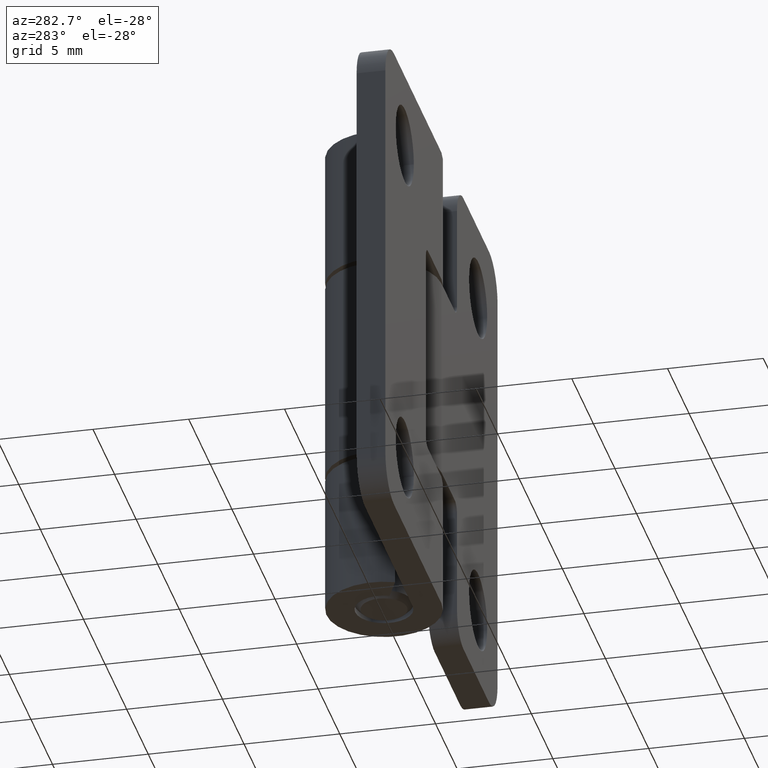
[diagram: clean part render]
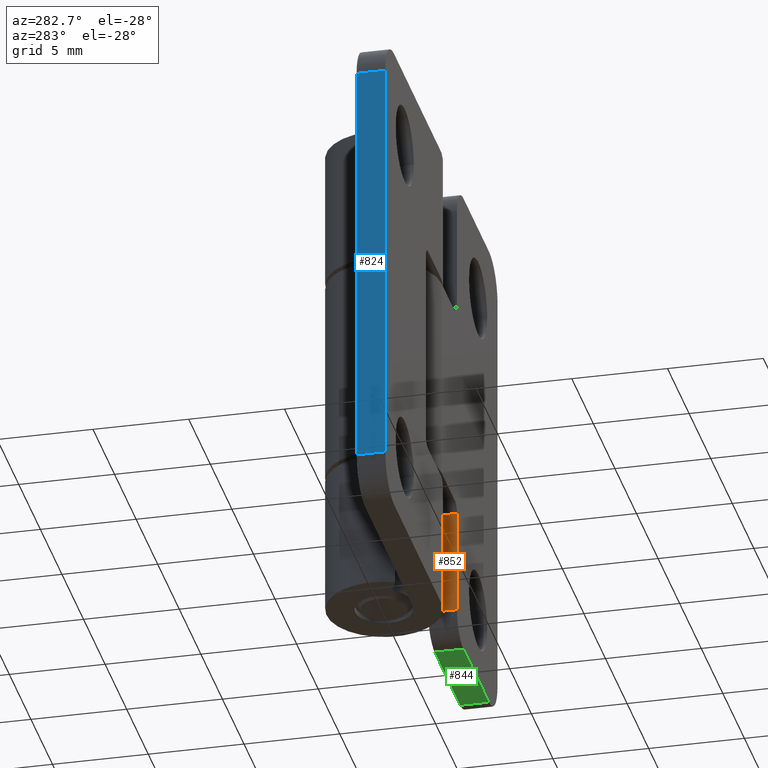
[diagram: same view with three faces highlighted in distinct colors, each labeled with its STEP entity id]
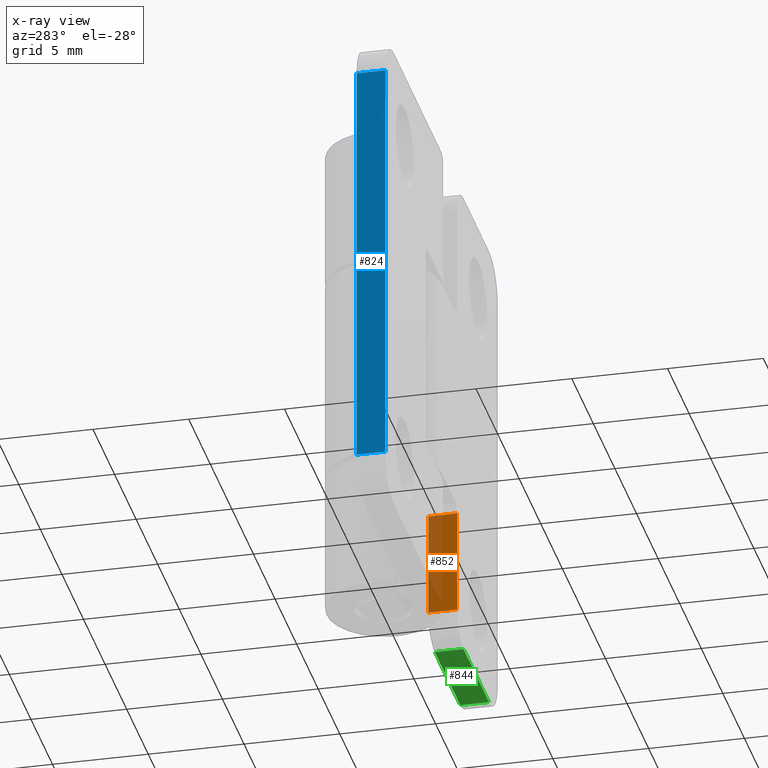
[diagram: x-ray of the same camera — body ghosted, the three highlighted faces saturated]
A machine part, auxiliary view with three faces highlighted in distinct colors.
The next image is the same camera in x-ray (body ghosted, the three faces saturated) — at least one of them is partly hidden behind the body in this view.
Their STEP definitions:

[orange] entity #852 — the highlighted planar face has unit normal (1, 0, 0).
#82=PLANE('',#946);
#122=FACE_OUTER_BOUND('',#181,.T.);
#181=EDGE_LOOP('',(#745,#746,#747,#748));
#245=LINE('',#1391,#309);
#250=LINE('',#1410,#314);
#255=LINE('',#1424,#319);
#264=LINE('',#1454,#328);
#309=VECTOR('',#1122,5.55);
#314=VECTOR('',#1139,1.5);
#319=VECTOR('',#1154,1.5);
#328=VECTOR('',#1187,5.55);
#430=VERTEX_POINT('',#1388);
#431=VERTEX_POINT('',#1390);
#439=VERTEX_POINT('',#1408);
#442=VERTEX_POINT('',#1420);
#528=EDGE_CURVE('',#430,#431,#245,.T.);
#538=EDGE_CURVE('',#439,#430,#250,.T.);
#545=EDGE_CURVE('',#431,#442,#255,.T.);
#560=EDGE_CURVE('',#442,#439,#264,.T.);
#745=ORIENTED_EDGE('',*,*,#538,.F.);
#746=ORIENTED_EDGE('',*,*,#560,.F.);
#747=ORIENTED_EDGE('',*,*,#545,.F.);
#748=ORIENTED_EDGE('',*,*,#528,.F.);
#852=ADVANCED_FACE('',(#122),#82,.F.);
#946=AXIS2_PLACEMENT_3D('',#1453,#1185,#1186);
#1122=DIRECTION('',(-4.69709741187566E-16,-1.20342131436267E-31,1.));
#1139=DIRECTION('',(-1.85037170770859E-16,1.,0.));
#1154=DIRECTION('',(1.85037170770859E-16,-1.,0.));
#1185=DIRECTION('center_axis',(1.,1.85037170770859E-16,4.69709741187566E-16));
#1186=DIRECTION('ref_axis',(-4.44089209850063E-16,0.,1.));
#1187=DIRECTION('',(4.69709741187566E-16,8.02280876241783E-32,-1.));
#1388=CARTESIAN_POINT('',(3.60000000000001,-1.5,-11.5));
#1390=CARTESIAN_POINT('',(3.6,-1.5,-5.95));
#1391=CARTESIAN_POINT('',(3.6,-1.5,-6.5));
#1408=CARTESIAN_POINT('',(3.60000000000001,-3.,-11.5));
#1410=CARTESIAN_POINT('',(3.60000000000001,-1.5,-11.5));
#1420=CARTESIAN_POINT('',(3.6,-3.,-5.95));
#1424=CARTESIAN_POINT('',(3.6,-3.,-5.95));
#1453=CARTESIAN_POINT('Origin',(3.60000000000001,-3.,-13.));
#1454=CARTESIAN_POINT('',(3.6,-3.,-6.5));

[blue] entity #824 — the highlighted planar face has unit normal (-1, -0, -0).
#69=PLANE('',#890);
#94=FACE_OUTER_BOUND('',#145,.T.);
#145=EDGE_LOOP('',(#611,#612,#613,#614));
#216=LINE('',#1293,#280);
#217=LINE('',#1296,#281);
#223=LINE('',#1312,#287);
#224=LINE('',#1313,#288);
#280=VECTOR('',#1017,1.5);
#281=VECTOR('',#1020,22.);
#287=VECTOR('',#1034,22.);
#288=VECTOR('',#1035,1.5);
#397=VERTEX_POINT('',#1286);
#400=VERTEX_POINT('',#1291);
#401=VERTEX_POINT('',#1295);
#407=VERTEX_POINT('',#1311);
#482=EDGE_CURVE('',#400,#397,#216,.T.);
#483=EDGE_CURVE('',#401,#397,#217,.T.);
#492=EDGE_CURVE('',#407,#400,#223,.T.);
#493=EDGE_CURVE('',#401,#407,#224,.T.);
#611=ORIENTED_EDGE('',*,*,#482,.F.);
#612=ORIENTED_EDGE('',*,*,#492,.F.);
#613=ORIENTED_EDGE('',*,*,#493,.F.);
#614=ORIENTED_EDGE('',*,*,#483,.T.);
#824=ADVANCED_FACE('',(#94),#69,.T.);
#890=AXIS2_PLACEMENT_3D('',#1310,#1032,#1033);
#1017=DIRECTION('',(0.,1.,0.));
#1020=DIRECTION('',(0.,0.,1.));
#1032=DIRECTION('center_axis',(1.,0.,0.));
#1033=DIRECTION('ref_axis',(0.,1.,0.));
#1034=DIRECTION('',(0.,0.,1.));
#1035=DIRECTION('',(0.,-1.,0.));
#1286=CARTESIAN_POINT('',(13.,-1.5,11.));
#1291=CARTESIAN_POINT('',(13.,-3.,11.));
#1293=CARTESIAN_POINT('',(13.,-1.5,11.));
#1295=CARTESIAN_POINT('',(13.,-1.5,-11.));
#1296=CARTESIAN_POINT('',(13.,-1.5,0.));
#1310=CARTESIAN_POINT('Origin',(13.,-3.,0.));
#1311=CARTESIAN_POINT('',(13.,-3.,-11.));
#1312=CARTESIAN_POINT('',(13.,-3.,0.));
#1313=CARTESIAN_POINT('',(13.,-1.5,-11.));

[green] entity #844 — the highlighted planar face has unit normal (-0, -0, 1).
#78=PLANE('',#930);
#114=FACE_OUTER_BOUND('',#173,.T.);
#173=EDGE_LOOP('',(#709,#710,#711,#712));
#244=LINE('',#1387,#308);
#249=LINE('',#1407,#313);
#251=LINE('',#1413,#315);
#252=LINE('',#1414,#316);
#308=VECTOR('',#1119,5.89999999999999);
#313=VECTOR('',#1136,1.5);
#315=VECTOR('',#1142,1.5);
#316=VECTOR('',#1143,5.89999999999999);
#428=VERTEX_POINT('',#1384);
#429=VERTEX_POINT('',#1386);
#438=VERTEX_POINT('',#1406);
#440=VERTEX_POINT('',#1412);
#526=EDGE_CURVE('',#429,#428,#244,.T.);
#536=EDGE_CURVE('',#429,#438,#249,.T.);
#539=EDGE_CURVE('',#440,#428,#251,.T.);
#540=EDGE_CURVE('',#440,#438,#252,.T.);
#709=ORIENTED_EDGE('',*,*,#536,.F.);
#710=ORIENTED_EDGE('',*,*,#526,.T.);
#711=ORIENTED_EDGE('',*,*,#539,.F.);
#712=ORIENTED_EDGE('',*,*,#540,.T.);
#844=ADVANCED_FACE('',(#114),#78,.F.);
#930=AXIS2_PLACEMENT_3D('',#1411,#1140,#1141);
#1119=DIRECTION('',(1.,2.56205313375036E-16,0.));
#1136=DIRECTION('',(1.85037170770859E-16,-1.,0.));
#1140=DIRECTION('center_axis',(0.,0.,1.));
#1141=DIRECTION('ref_axis',(1.,0.,0.));
#1142=DIRECTION('',(0.,1.,0.));
#1143=DIRECTION('',(-1.,-1.70803542250024E-16,0.));
#1384=CARTESIAN_POINT('',(11.,-1.5,-13.));
#1386=CARTESIAN_POINT('',(5.10000000000001,-1.5,-13.));
#1387=CARTESIAN_POINT('',(13.,-1.5,-13.));
#1406=CARTESIAN_POINT('',(5.10000000000001,-3.,-13.));
#1407=CARTESIAN_POINT('',(5.10000000000001,-1.5,-13.));
#1411=CARTESIAN_POINT('Origin',(5.,-2.77555756156289E-16,-13.));
#1412=CARTESIAN_POINT('',(11.,-3.,-13.));
#1413=CARTESIAN_POINT('',(11.,-1.5,-13.));
#1414=CARTESIAN_POINT('',(0.,-3.,-13.));